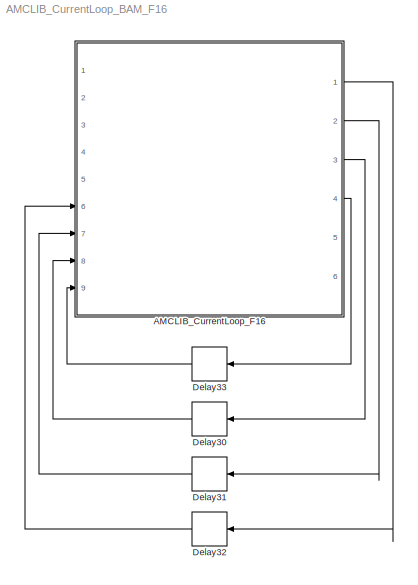
MODEL AMCLIB_CurrentLoop_BAM_F16
KIND model
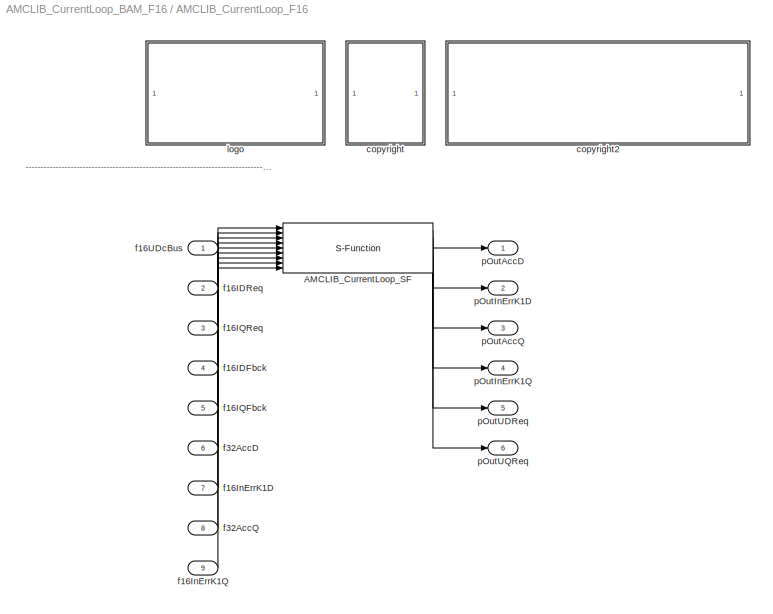
BLOCK [SubSystem] AMCLIB_CurrentLoop_F16
  Ports = [9, 6]
  RequestExecContextInheritance = off
  SID = 1
BLOCK [S-Function] AMCLIB_CurrentLoop_F16/AMCLIB_CurrentLoop_SF
  EnableBusSupport = off
  FunctionName = AMCLIB_CurrentLoop_SF_F16
  Parameters = f16CC1scD,f16CC2scD,u16NShiftD,f16CC1scQ,f16CC2scQ,u16NShiftQ
  Ports = [9, 6]
  SID = 4
BLOCK [SubSystem] AMCLIB_CurrentLoop_F16/<copyright redacted>
  Ports = []
  RequestExecContextInheritance = off
  SID = 24
BLOCK [SubSystem] AMCLIB_CurrentLoop_F16/copyright2
  Ports = []
  RequestExecContextInheritance = off
  SID = 27
BLOCK [Inport] AMCLIB_CurrentLoop_F16/f16IDFbck
  IconDisplay = Port number
  Port = 4
  SID = 8
BLOCK [Inport] AMCLIB_CurrentLoop_F16/f16IDReq
  IconDisplay = Port number
  Port = 2
  SID = 6
BLOCK [Inport] AMCLIB_CurrentLoop_F16/f16IQFbck
  IconDisplay = Port number
  Port = 5
  SID = 9
BLOCK [Inport] AMCLIB_CurrentLoop_F16/f16IQReq
  IconDisplay = Port number
  Port = 3
  SID = 7
BLOCK [Inport] AMCLIB_CurrentLoop_F16/f16InErrK1D
  IconDisplay = Port number
  Port = 7
  SID = 11
BLOCK [Inport] AMCLIB_CurrentLoop_F16/f16InErrK1Q
  IconDisplay = Port number
  Port = 9
  SID = 13
BLOCK [Inport] AMCLIB_CurrentLoop_F16/f16UDcBus
  IconDisplay = Port number
  SID = 5
BLOCK [Inport] AMCLIB_CurrentLoop_F16/f32AccD
  IconDisplay = Port number
  Port = 6
  SID = 10
BLOCK [Inport] AMCLIB_CurrentLoop_F16/f32AccQ
  IconDisplay = Port number
  Port = 8
  SID = 12
BLOCK [SubSystem] AMCLIB_CurrentLoop_F16/logo
  Ports = []
  RequestExecContextInheritance = off
  SID = 20
BLOCK [Outport] AMCLIB_CurrentLoop_F16/pOutAccD
  IconDisplay = Port number
  SID = 14
BLOCK [Outport] AMCLIB_CurrentLoop_F16/pOutAccQ
  IconDisplay = Port number
  Port = 3
  SID = 16
BLOCK [Outport] AMCLIB_CurrentLoop_F16/pOutInErrK1D
  IconDisplay = Port number
  Port = 2
  SID = 15
BLOCK [Outport] AMCLIB_CurrentLoop_F16/pOutInErrK1Q
  IconDisplay = Port number
  Port = 4
  SID = 17
BLOCK [Outport] AMCLIB_CurrentLoop_F16/pOutUDReq
  IconDisplay = Port number
  Port = 5
  SID = 18
BLOCK [Outport] AMCLIB_CurrentLoop_F16/pOutUQReq
  IconDisplay = Port number
  Port = 6
  SID = 19
BLOCK [Delay] Delay30
  DelayLength = 1
  InitialCondition = 0
  InputPortMap = u0
  Ports = [1, 1]
  SID = 30
BLOCK [Delay] Delay31
  DelayLength = 1
  InitialCondition = 0
  InputPortMap = u0
  Ports = [1, 1]
  SID = 31
BLOCK [Delay] Delay32
  DelayLength = 1
  InitialCondition = 0
  InputPortMap = u0
  Ports = [1, 1]
  SID = 32
BLOCK [Delay] Delay33
  DelayLength = 1
  InitialCondition = 0
  InputPortMap = u0
  Ports = [1, 1]
  SID = 33
ANNOTATION AMCLIB_CurrentLoop_F16: ---------------------------------------------------------------------------------------------------------------------------------------------------------------------------------------------------
LINE AMCLIB_CurrentLoop_F16/AMCLIB_CurrentLoop_SF:1 -> AMCLIB_CurrentLoop_F16/pOutAccD:1
LINE AMCLIB_CurrentLoop_F16/AMCLIB_CurrentLoop_SF:2 -> AMCLIB_CurrentLoop_F16/pOutInErrK1D:1
LINE AMCLIB_CurrentLoop_F16/AMCLIB_CurrentLoop_SF:3 -> AMCLIB_CurrentLoop_F16/pOutAccQ:1
LINE AMCLIB_CurrentLoop_F16/AMCLIB_CurrentLoop_SF:4 -> AMCLIB_CurrentLoop_F16/pOutInErrK1Q:1
LINE AMCLIB_CurrentLoop_F16/AMCLIB_CurrentLoop_SF:5 -> AMCLIB_CurrentLoop_F16/pOutUDReq:1
LINE AMCLIB_CurrentLoop_F16/AMCLIB_CurrentLoop_SF:6 -> AMCLIB_CurrentLoop_F16/pOutUQReq:1
LINE AMCLIB_CurrentLoop_F16/f16IDFbck:1 -> AMCLIB_CurrentLoop_F16/AMCLIB_CurrentLoop_SF:4
LINE AMCLIB_CurrentLoop_F16/f16IDReq:1 -> AMCLIB_CurrentLoop_F16/AMCLIB_CurrentLoop_SF:2
LINE AMCLIB_CurrentLoop_F16/f16IQFbck:1 -> AMCLIB_CurrentLoop_F16/AMCLIB_CurrentLoop_SF:5
LINE AMCLIB_CurrentLoop_F16/f16IQReq:1 -> AMCLIB_CurrentLoop_F16/AMCLIB_CurrentLoop_SF:3
LINE AMCLIB_CurrentLoop_F16/f16InErrK1D:1 -> AMCLIB_CurrentLoop_F16/AMCLIB_CurrentLoop_SF:7
LINE AMCLIB_CurrentLoop_F16/f16InErrK1Q:1 -> AMCLIB_CurrentLoop_F16/AMCLIB_CurrentLoop_SF:9
LINE AMCLIB_CurrentLoop_F16/f16UDcBus:1 -> AMCLIB_CurrentLoop_F16/AMCLIB_CurrentLoop_SF:1
LINE AMCLIB_CurrentLoop_F16/f32AccD:1 -> AMCLIB_CurrentLoop_F16/AMCLIB_CurrentLoop_SF:6
LINE AMCLIB_CurrentLoop_F16/f32AccQ:1 -> AMCLIB_CurrentLoop_F16/AMCLIB_CurrentLoop_SF:8
LINE AMCLIB_CurrentLoop_F16:1 -> Delay32:1
LINE AMCLIB_CurrentLoop_F16:2 -> Delay31:1
LINE AMCLIB_CurrentLoop_F16:3 -> Delay30:1
LINE AMCLIB_CurrentLoop_F16:4 -> Delay33:1
LINE Delay30:1 -> AMCLIB_CurrentLoop_F16:8
LINE Delay31:1 -> AMCLIB_CurrentLoop_F16:7
LINE Delay32:1 -> AMCLIB_CurrentLoop_F16:6
LINE Delay33:1 -> AMCLIB_CurrentLoop_F16:9
